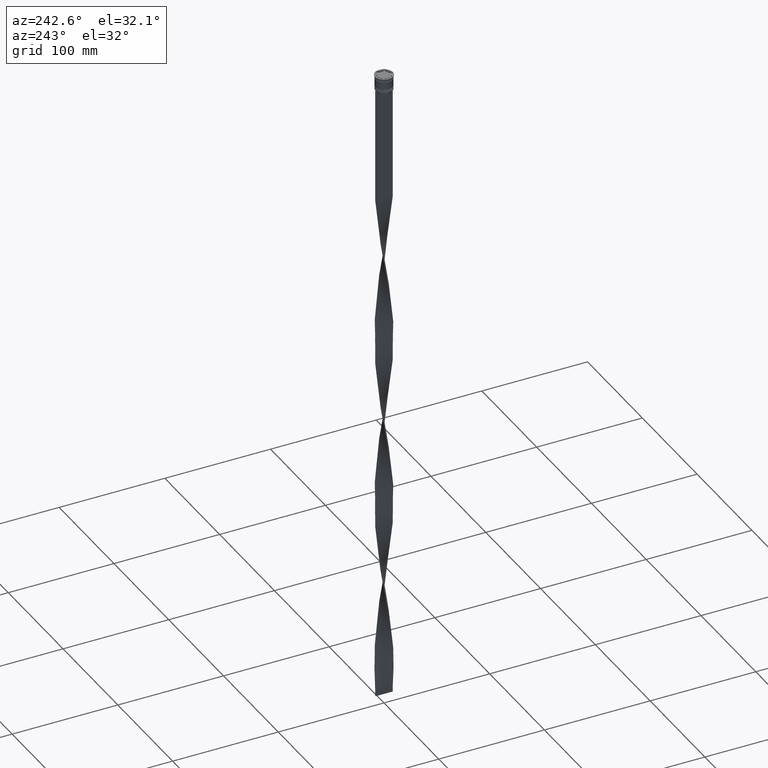
[diagram: clean part render]
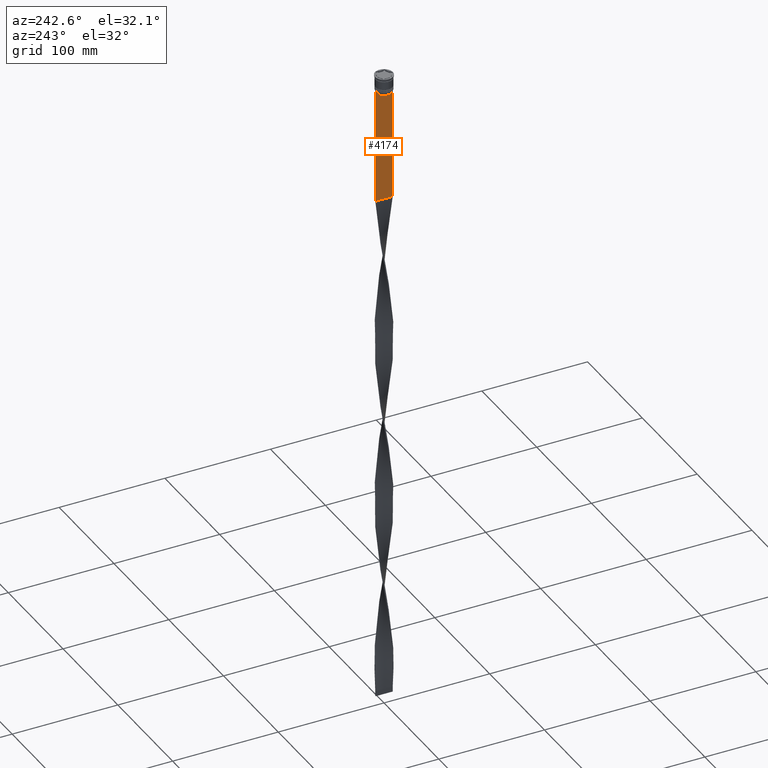
[diagram: same view with one face highlighted and labeled with its STEP entity id]
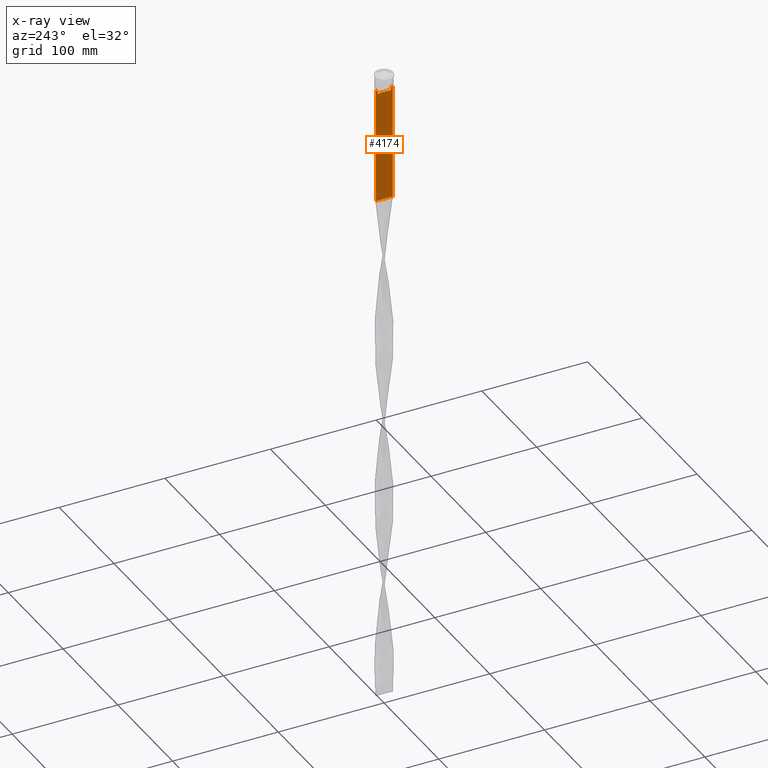
[diagram: x-ray of the same camera — body ghosted, the highlighted face saturated]
A machine part, auxiliary view. The second image highlights one B-rep face of the part: STEP entity #4174.
The next image is the same camera in x-ray: the body ghosted, the highlighted face saturated — about 0% of this face is hidden behind the body in this view.
In plain terms, the highlighted planar face has unit normal (-1, 0, 0).
Its self-contained STEP definition (entity closure, byte-faithful):
#39 = DIRECTION ( 'NONE',  ( 0.000000000000000000, 0.000000000000000000, -1.000000000000000000 ) ) ;
#109 = VECTOR ( 'NONE', #592, 1000.000000000000000 ) ;
#121 = ORIENTED_EDGE ( 'NONE', *, *, #864, .F. ) ;
#129 = CARTESIAN_POINT ( 'NONE',  ( -0.4999999999999998890, -6.881860213634098500, -14.00000000000000178 ) ) ;
#147 = LINE ( 'NONE', #1453, #3731 ) ;
#157 = LINE ( 'NONE', #499, #3297 ) ;
#162 = CARTESIAN_POINT ( 'NONE',  ( -0.4999999999999998890, 7.999999999999996447, -123.0000000000000000 ) ) ;
#182 = CARTESIAN_POINT ( 'NONE',  ( -0.4999999999999998890, -8.000000000000003553, -14.00000000000000178 ) ) ;
#217 = ORIENTED_EDGE ( 'NONE', *, *, #895, .F. ) ;
#256 = CARTESIAN_POINT ( 'NONE',  ( -0.4999999999999998890, -8.000000000000003553, -14.00000000000000178 ) ) ;
#345 = VECTOR ( 'NONE', #3291, 1000.000000000000000 ) ;
#347 = VERTEX_POINT ( 'NONE', #818 ) ;
#415 = ORIENTED_EDGE ( 'NONE', *, *, #550, .F. ) ;
#422 = DIRECTION ( 'NONE',  ( -0.000000000000000000, -0.000000000000000000, 1.000000000000000000 ) ) ;
#461 = VERTEX_POINT ( 'NONE', #1419 ) ;
#499 = CARTESIAN_POINT ( 'NONE',  ( -0.4999999999999998890, -8.000000000000003553, -123.0000000000000000 ) ) ;
#524 = CARTESIAN_POINT ( 'NONE',  ( -0.4999999999999998890, -6.881860213634098500, -14.00000000000000178 ) ) ;
#550 = EDGE_CURVE ( 'NONE', #1154, #2334, #4055, .T. ) ;
#592 = DIRECTION ( 'NONE',  ( 0.000000000000000000, -1.000000000000000000, 0.000000000000000000 ) ) ;
#761 = EDGE_CURVE ( 'NONE', #3953, #2093, #2088, .T. ) ;
#818 = CARTESIAN_POINT ( 'NONE',  ( -0.4999999999999998890, -8.000000000000003553, -14.00000000000000178 ) ) ;
#849 = CARTESIAN_POINT ( 'NONE',  ( -0.4999999999999998890, -6.714736947305992132, -14.16668390685738999 ) ) ;
#864 = EDGE_CURVE ( 'NONE', #2093, #4159, #2090, .T. ) ;
#895 = EDGE_CURVE ( 'NONE', #3062, #3953, #147, .T. ) ;
#967 = VECTOR ( 'NONE', #422, 1000.000000000000000 ) ;
#1076 = ORIENTED_EDGE ( 'NONE', *, *, #4089, .F. ) ;
#1112 = ORIENTED_EDGE ( 'NONE', *, *, #2507, .T. ) ;
#1125 = CARTESIAN_POINT ( 'NONE',  ( -0.4999999999999998890, -8.000000000000003553, 2.031219541881394530 ) ) ;
#1154 = VERTEX_POINT ( 'NONE', #1243 ) ;
#1170 = EDGE_CURVE ( 'NONE', #461, #1154, #1539, .T. ) ;
#1205 = CARTESIAN_POINT ( 'NONE',  ( -0.4999999999999998890, 6.881860213634098500, -14.00000000000000178 ) ) ;
#1210 = CARTESIAN_POINT ( 'NONE',  ( -0.4999999999999998890, -8.000000000000003553, -14.00000000000000178 ) ) ;
#1243 = CARTESIAN_POINT ( 'NONE',  ( -0.4999999999999998890, 7.884161337770806632, -14.00000000000000178 ) ) ;
#1272 = ORIENTED_EDGE ( 'NONE', *, *, #1170, .F. ) ;
#1276 = CARTESIAN_POINT ( 'NONE',  ( -0.4999999999999998890, -8.000000000000003553, -123.0000000000000000 ) ) ;
#1333 = VECTOR ( 'NONE', #39, 1000.000000000000000 ) ;
#1397 = VECTOR ( 'NONE', #3696, 1000.000000000000000 ) ;
#1419 = CARTESIAN_POINT ( 'NONE',  ( -0.4999999999999998890, 7.999999999999996447, -14.00000000000000178 ) ) ;
#1453 = CARTESIAN_POINT ( 'NONE',  ( -0.4999999999999998890, 6.399999999999999467, -17.00000000000000000 ) ) ;
#1479 = CARTESIAN_POINT ( 'NONE',  ( -0.4999999999999998890, 6.714736947114692711, -14.16668390704818847 ) ) ;
#1500 = EDGE_CURVE ( 'NONE', #2334, #3530, #3455, .T. ) ;
#1525 = LINE ( 'NONE', #1125, #2902 ) ;
#1539 = LINE ( 'NONE', #182, #345 ) ;
#1545 = CARTESIAN_POINT ( 'NONE',  ( -0.4999999999999998890, -6.380438856379708312, -14.50000000000000000 ) ) ;
#1694 = ORIENTED_EDGE ( 'NONE', *, *, #1723, .F. ) ;
#1723 = EDGE_CURVE ( 'NONE', #3530, #3062, #2814, .T. ) ;
#1847 = DIRECTION ( 'NONE',  ( -1.000000000000000000, 0.000000000000000000, 0.000000000000000000 ) ) ;
#1862 = CARTESIAN_POINT ( 'NONE',  ( -0.4999999999999998890, -6.380438856379708312, -14.50000000000000000 ) ) ;
#1960 = ORIENTED_EDGE ( 'NONE', *, *, #2995, .F. ) ;
#1999 = CARTESIAN_POINT ( 'NONE',  ( -0.4999999999999998890, 6.881860213634098500, -14.00000000000000178 ) ) ;
#2088 = LINE ( 'NONE', #3436, #967 ) ;
#2090 = B_SPLINE_CURVE_WITH_KNOTS ( 'NONE', 3,
 ( #1862, #3937, #849, #524 ),
 .UNSPECIFIED., .F., .F.,
 ( 4, 4 ),
 ( 0.02996184199614749730, 0.03067452609193703841 ),
 .UNSPECIFIED. ) ;
#2093 = VERTEX_POINT ( 'NONE', #1545 ) ;
#2101 = DIRECTION ( 'NONE',  ( 0.000000000000000000, 0.000000000000000000, -1.000000000000000000 ) ) ;
#2251 = VECTOR ( 'NONE', #3541, 1000.000000000000000 ) ;
#2274 = LINE ( 'NONE', #256, #109 ) ;
#2291 = CARTESIAN_POINT ( 'NONE',  ( -0.4999999999999998890, 6.380438856379708312, -14.50000000000000000 ) ) ;
#2317 = ORIENTED_EDGE ( 'NONE', *, *, #4388, .F. ) ;
#2334 = VERTEX_POINT ( 'NONE', #1999 ) ;
#2507 = EDGE_CURVE ( 'NONE', #461, #3375, #4123, .T. ) ;
#2550 = CARTESIAN_POINT ( 'NONE',  ( -0.4999999999999998890, 6.380438856379708312, -14.50000000000000000 ) ) ;
#2577 = PLANE ( 'NONE',  #3499 ) ;
#2805 = CARTESIAN_POINT ( 'NONE',  ( -0.4999999999999998890, -6.380438856379708312, -17.00000000000000000 ) ) ;
#2814 = LINE ( 'NONE', #3085, #4244 ) ;
#2849 = FACE_OUTER_BOUND ( 'NONE', #3340, .T. ) ;
#2869 = CARTESIAN_POINT ( 'NONE',  ( -0.4999999999999998890, 6.547597841304911626, -14.33335192459222718 ) ) ;
#2873 = CARTESIAN_POINT ( 'NONE',  ( -0.4999999999999998890, -8.000000000000003553, 2.031219541881394530 ) ) ;
#2902 = VECTOR ( 'NONE', #3560, 1000.000000000000000 ) ;
#2915 = DIRECTION ( 'NONE',  ( 0.000000000000000000, 1.000000000000000000, 0.000000000000000000 ) ) ;
#2995 = EDGE_CURVE ( 'NONE', #4333, #3375, #157, .T. ) ;
#3062 = VERTEX_POINT ( 'NONE', #3809 ) ;
#3085 = CARTESIAN_POINT ( 'NONE',  ( -0.4999999999999998890, 6.380438856379708312, 0.000000000000000000 ) ) ;
#3117 = CARTESIAN_POINT ( 'NONE',  ( -0.4999999999999998890, 7.999999999999996447, 2.031219541881394530 ) ) ;
#3236 = DIRECTION ( 'NONE',  ( 0.000000000000000000, 0.000000000000000000, 1.000000000000000000 ) ) ;
#3291 = DIRECTION ( 'NONE',  ( 0.000000000000000000, -1.000000000000000000, 0.000000000000000000 ) ) ;
#3297 = VECTOR ( 'NONE', #2915, 1000.000000000000000 ) ;
#3340 = EDGE_LOOP ( 'NONE', ( #4046, #415, #1272, #1112, #1960, #1076, #3407, #2317, #121, #3516, #217, #1694 ) ) ;
#3375 = VERTEX_POINT ( 'NONE', #162 ) ;
#3407 = ORIENTED_EDGE ( 'NONE', *, *, #4279, .F. ) ;
#3436 = CARTESIAN_POINT ( 'NONE',  ( -0.4999999999999998890, -6.380438856379708312, 0.000000000000000000 ) ) ;
#3455 = B_SPLINE_CURVE_WITH_KNOTS ( 'NONE', 3,
 ( #1205, #1479, #2869, #2550 ),
 .UNSPECIFIED., .F., .F.,
 ( 4, 4 ),
 ( 0.01172465562756038263, 0.01243276816391822651 ),
 .UNSPECIFIED. ) ;
#3499 = AXIS2_PLACEMENT_3D ( 'NONE', #2873, #1847, #3236 ) ;
#3516 = ORIENTED_EDGE ( 'NONE', *, *, #761, .F. ) ;
#3530 = VERTEX_POINT ( 'NONE', #2291 ) ;
#3541 = DIRECTION ( 'NONE',  ( 0.000000000000000000, -1.000000000000000000, 0.000000000000000000 ) ) ;
#3560 = DIRECTION ( 'NONE',  ( 0.000000000000000000, 0.000000000000000000, -1.000000000000000000 ) ) ;
#3696 = DIRECTION ( 'NONE',  ( 0.000000000000000000, -1.000000000000000000, 0.000000000000000000 ) ) ;
#3731 = VECTOR ( 'NONE', #3898, 1000.000000000000000 ) ;
#3809 = CARTESIAN_POINT ( 'NONE',  ( -0.4999999999999998890, 6.380438856379708312, -17.00000000000000000 ) ) ;
#3898 = DIRECTION ( 'NONE',  ( 0.000000000000000000, -1.000000000000000000, 0.000000000000000000 ) ) ;
#3937 = CARTESIAN_POINT ( 'NONE',  ( -0.4999999999999998890, -6.547597841511246131, -14.33335192438652328 ) ) ;
#3953 = VERTEX_POINT ( 'NONE', #2805 ) ;
#3963 = CARTESIAN_POINT ( 'NONE',  ( -0.4999999999999998890, -7.884161337770806632, -14.00000000000000178 ) ) ;
#4046 = ORIENTED_EDGE ( 'NONE', *, *, #1500, .F. ) ;
#4055 = LINE ( 'NONE', #4349, #1397 ) ;
#4089 = EDGE_CURVE ( 'NONE', #347, #4333, #1525, .T. ) ;
#4096 = VERTEX_POINT ( 'NONE', #3963 ) ;
#4123 = LINE ( 'NONE', #3117, #1333 ) ;
#4159 = VERTEX_POINT ( 'NONE', #129 ) ;
#4174 = ADVANCED_FACE ( 'NONE', ( #2849 ), #2577, .T. ) ;
#4244 = VECTOR ( 'NONE', #2101, 1000.000000000000000 ) ;
#4279 = EDGE_CURVE ( 'NONE', #4096, #347, #4325, .T. ) ;
#4325 = LINE ( 'NONE', #1210, #2251 ) ;
#4333 = VERTEX_POINT ( 'NONE', #1276 ) ;
#4349 = CARTESIAN_POINT ( 'NONE',  ( -0.4999999999999998890, -8.000000000000003553, -14.00000000000000178 ) ) ;
#4388 = EDGE_CURVE ( 'NONE', #4159, #4096, #2274, .T. ) ;